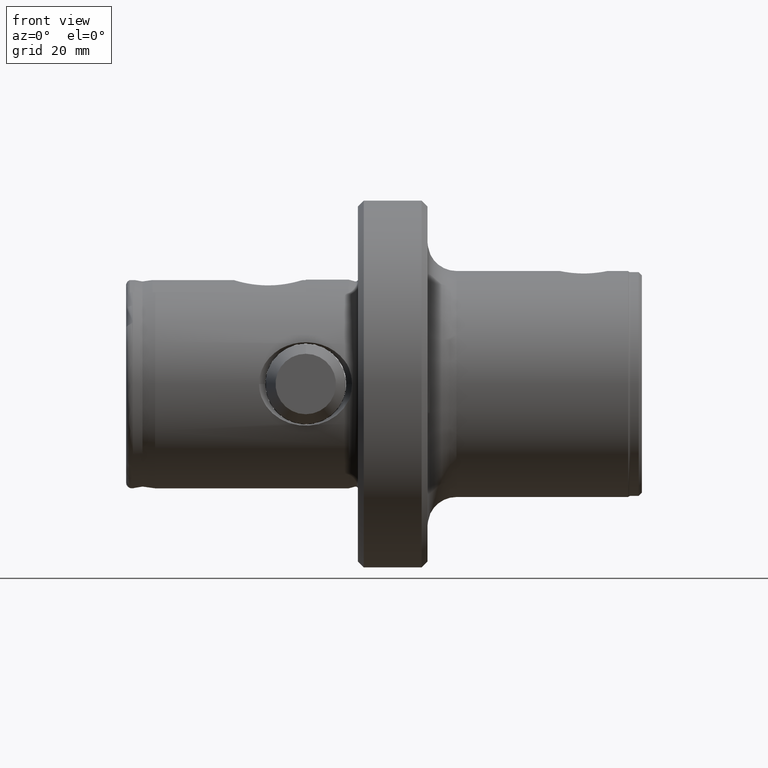
[diagram: clean part render]
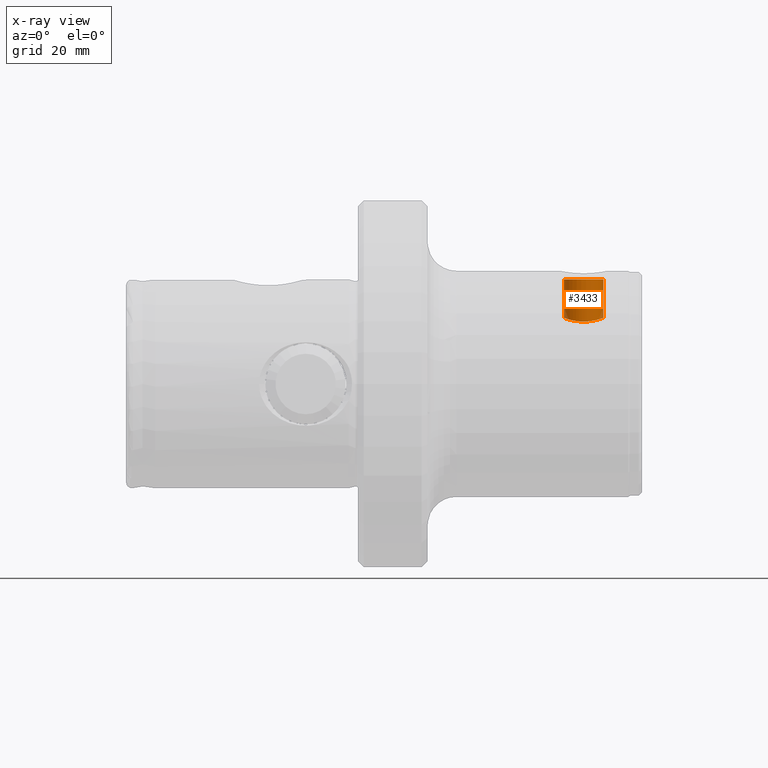
[diagram: x-ray — body ghosted, one internal face saturated and labeled with its STEP entity id]
A machine part, front view, then the same camera in x-ray: the body is ghosted and one INTERNAL B-rep face — a face not visible from any outside direction — is saturated and labeled: STEP entity #3433.
In plain terms, the highlighted cylindrical surface (edge-blend (fillet) strip) has radius 3.4 mm, axis along (0, 0, 1).
Its self-contained STEP definition (entity closure, byte-faithful):
#148 = DIRECTION ( 'NONE',  ( -0.0000000000000000000, -0.0000000000000000000, 1.000000000000000000 ) ) ;
#193 = CARTESIAN_POINT ( 'NONE',  ( 82.29864493432023700, -0.7379659916039424900, 11.37320497847664700 ) ) ;
#211 = CARTESIAN_POINT ( 'NONE',  ( 78.62647293863251700, -3.400101834154938300, 10.74807252964610200 ) ) ;
#218 = LINE ( 'NONE', #2098, #1039 ) ;
#219 = CIRCLE ( 'NONE', #2806, 3.399999999999986100 ) ;
#227 = CARTESIAN_POINT ( 'NONE',  ( 75.82839256843330100, -1.365700412242674800, 11.29282632498417400 ) ) ;
#262 = EDGE_CURVE ( 'NONE', #3651, #2281, #4325, .T. ) ;
#502 = DIRECTION ( 'NONE',  ( 0.0000000000000000000, 0.0000000000000000000, -1.000000000000000000 ) ) ;
#574 = B_SPLINE_CURVE_WITH_KNOTS ( 'NONE', 3,
 ( #2188, #4591, #193, #2989, #591, #3397, #1005, #3791, #1408, #4204, #1801, #4609, #2205, #5001, #2599, #211, #3005, #610, #3417, #1024, #3807, #1428, #4223, #1817, #4623, #2224, #5017, #2619, #227, #3023, #628, #3437 ),
 .UNSPECIFIED., .F., .F.,
 ( 4, 2, 2, 2, 2, 2, 2, 2, 2, 2, 2, 2, 2, 2, 2, 4 ),
 ( 0.0000000000000000000, 0.06249488871445036500, 0.1249897774289007300, 0.1328016385182078100, 0.1406134996075148700, 0.1562372217861290000, 0.1874846661433558200, 0.2499795548578076200, 0.3124744435722594000, 0.3437218879294862100, 0.3749693322867129800, 0.3827811933760191800, 0.3905930544653253800, 0.4062167766439386800, 0.4374642210011653300, 0.4999591097156192400 ),
 .UNSPECIFIED. ) ;
#591 = CARTESIAN_POINT ( 'NONE',  ( 81.74213020574806900, -2.016102428732217800, 11.18590158789139900 ) ) ;
#610 = CARTESIAN_POINT ( 'NONE',  ( 77.60792183201613200, -3.131825853327316000, 10.85826885980400300 ) ) ;
#628 = CARTESIAN_POINT ( 'NONE',  ( 75.55000000003511200, -0.3412882242973116500, 11.39998614405486100 ) ) ;
#794 = CYLINDRICAL_SURFACE ( 'NONE', #2587, 3.399999999999986100 ) ;
#1005 = CARTESIAN_POINT ( 'NONE',  ( 81.25364605133891900, -2.501588679946855600, 11.05173632785415100 ) ) ;
#1024 = CARTESIAN_POINT ( 'NONE',  ( 76.96031260915430000, -2.768549946825487500, 10.97529480184545000 ) ) ;
#1039 = VECTOR ( 'NONE', #4885, 1000.000000000000000 ) ;
#1382 = ORIENTED_EDGE ( 'NONE', *, *, #5096, .F. ) ;
#1408 = CARTESIAN_POINT ( 'NONE',  ( 81.09838109689721400, -2.636083184255727700, 11.01337786116274000 ) ) ;
#1428 = CARTESIAN_POINT ( 'NONE',  ( 76.49689162270075800, -2.355258523535797500, 11.09230211474689500 ) ) ;
#1517 = EDGE_CURVE ( 'NONE', #2931, #3651, #574, .T. ) ;
#1753 = DIRECTION ( 'NONE',  ( 1.000000000000000000, 0.0000000000000000000, 0.0000000000000000000 ) ) ;
#1801 = CARTESIAN_POINT ( 'NONE',  ( 80.83308396928949000, -2.833715213917961800, 10.95476524695679300 ) ) ;
#1817 = CARTESIAN_POINT ( 'NONE',  ( 76.36271594037067700, -2.206910747661328600, 11.13001856799653700 ) ) ;
#1880 = CARTESIAN_POINT ( 'NONE',  ( 75.55000000000001100, 4.163799117100992700E-016, 19.50000000000000000 ) ) ;
#2098 = CARTESIAN_POINT ( 'NONE',  ( 82.34999999999998000, 0.0000000000000000000, 19.50000000000000000 ) ) ;
#2109 = VERTEX_POINT ( 'NONE', #2215 ) ;
#2188 = CARTESIAN_POINT ( 'NONE',  ( 82.34999999999998000, -3.079596944615488200E-016, 11.40000002427508200 ) ) ;
#2191 = VECTOR ( 'NONE', #3874, 1000.000000000000000 ) ;
#2205 = CARTESIAN_POINT ( 'NONE',  ( 80.29303165078847800, -3.131415212817430800, 10.85823773639037700 ) ) ;
#2215 = CARTESIAN_POINT ( 'NONE',  ( 82.34999999999998000, 0.0000000000000000000, 18.02499999999999500 ) ) ;
#2224 = CARTESIAN_POINT ( 'NONE',  ( 76.19876387254171800, -2.001952614285121600, 11.17731121545335600 ) ) ;
#2281 = VERTEX_POINT ( 'NONE', #4455 ) ;
#2587 = AXIS2_PLACEMENT_3D ( 'NONE', #4939, #148, #1753 ) ;
#2599 = CARTESIAN_POINT ( 'NONE',  ( 79.27566391717884600, -3.399897830098512800, 10.74797358663946200 ) ) ;
#2604 = ORIENTED_EDGE ( 'NONE', *, *, #1517, .T. ) ;
#2619 = CARTESIAN_POINT ( 'NONE',  ( 75.92922371857977700, -1.580105958636395500, 11.25934278044335800 ) ) ;
#2635 = ORIENTED_EDGE ( 'NONE', *, *, #4196, .F. ) ;
#2806 = AXIS2_PLACEMENT_3D ( 'NONE', #2894, #502, #3294 ) ;
#2814 = ORIENTED_EDGE ( 'NONE', *, *, #262, .T. ) ;
#2894 = CARTESIAN_POINT ( 'NONE',  ( 78.94999999999998900, 0.0000000000000000000, 18.02499999999999500 ) ) ;
#2931 = VERTEX_POINT ( 'NONE', #3982 ) ;
#2989 = CARTESIAN_POINT ( 'NONE',  ( 81.99593967101130000, -1.574886732902470900, 11.26616766619406800 ) ) ;
#3005 = CARTESIAN_POINT ( 'NONE',  ( 78.23732480692861200, -3.354120153985761000, 10.77564039584533100 ) ) ;
#3023 = CARTESIAN_POINT ( 'NONE',  ( 75.60123081842058900, -0.7375820359473923600, 11.37319099072883700 ) ) ;
#3237 = EDGE_LOOP ( 'NONE', ( #2604, #2814, #1382, #2635 ) ) ;
#3294 = DIRECTION ( 'NONE',  ( 1.000000000000000000, 0.0000000000000000000, 0.0000000000000000000 ) ) ;
#3297 = FACE_OUTER_BOUND ( 'NONE', #3237, .T. ) ;
#3397 = CARTESIAN_POINT ( 'NONE',  ( 81.30599306104673500, -2.452344696446631600, 11.06551139986933700 ) ) ;
#3417 = CARTESIAN_POINT ( 'NONE',  ( 77.39098430957516000, -3.032028165826796700, 10.89269117674011500 ) ) ;
#3433 = ADVANCED_FACE ( 'NONE', ( #3297 ), #794, .F. ) ;
#3437 = CARTESIAN_POINT ( 'NONE',  ( 75.54999997608675200, -3.475860112539127500E-010, 11.40000002937963200 ) ) ;
#3651 = VERTEX_POINT ( 'NONE', #5122 ) ;
#3791 = CARTESIAN_POINT ( 'NONE',  ( 81.15058740535272400, -2.592710189143888800, 11.02587654842313100 ) ) ;
#3807 = CARTESIAN_POINT ( 'NONE',  ( 76.74657983944936700, -2.604740749383950500, 11.02347611001467500 ) ) ;
#3874 = DIRECTION ( 'NONE',  ( -0.0000000000000000000, -0.0000000000000000000, 1.000000000000000000 ) ) ;
#3982 = CARTESIAN_POINT ( 'NONE',  ( 82.34999999999998000, -3.079596944615488200E-016, 11.40000002427508200 ) ) ;
#4196 = EDGE_CURVE ( 'NONE', #2931, #2109, #218, .T. ) ;
#4204 = CARTESIAN_POINT ( 'NONE',  ( 80.94033547013899000, -2.759794971296067400, 10.97717540674690000 ) ) ;
#4223 = CARTESIAN_POINT ( 'NONE',  ( 76.45171816497681000, -2.307180471083287300, 11.10490764244371000 ) ) ;
#4325 = LINE ( 'NONE', #1880, #2191 ) ;
#4455 = CARTESIAN_POINT ( 'NONE',  ( 75.55000000000001100, 4.577117411813234200E-016, 18.02499999999999500 ) ) ;
#4591 = CARTESIAN_POINT ( 'NONE',  ( 82.34999999999998000, -0.3416565477120666600, 11.39997621245655600 ) ) ;
#4609 = CARTESIAN_POINT ( 'NONE',  ( 80.50998887131912300, -3.031538110811339500, 10.89270919704784300 ) ) ;
#4623 = CARTESIAN_POINT ( 'NONE',  ( 76.32023803065845900, -2.156068322044492300, 11.14215557310883400 ) ) ;
#4885 = DIRECTION ( 'NONE',  ( -0.0000000000000000000, -0.0000000000000000000, 1.000000000000000000 ) ) ;
#4939 = CARTESIAN_POINT ( 'NONE',  ( 78.94999999999998900, 0.0000000000000000000, 19.50000000000000000 ) ) ;
#5001 = CARTESIAN_POINT ( 'NONE',  ( 79.66377274213415700, -3.353879764231656200, 10.77552107226344600 ) ) ;
#5017 = CARTESIAN_POINT ( 'NONE',  ( 76.12573751846905200, -1.897102390790758000, 11.19907447969322000 ) ) ;
#5096 = EDGE_CURVE ( 'NONE', #2109, #2281, #219, .T. ) ;
#5122 = CARTESIAN_POINT ( 'NONE',  ( 75.54999997608675200, -3.475860112539127500E-010, 11.40000002937963200 ) ) ;